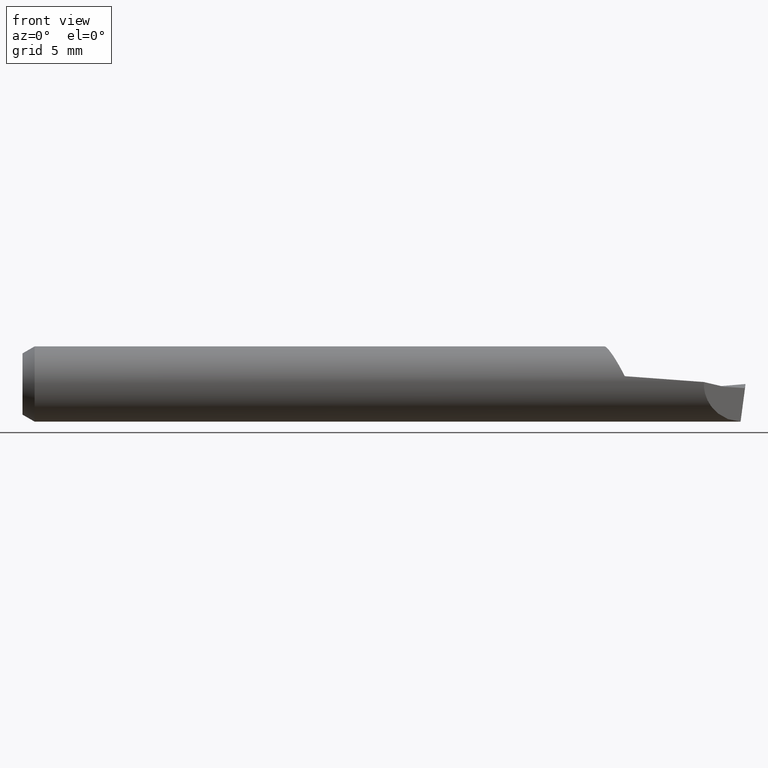
[diagram: clean part render]
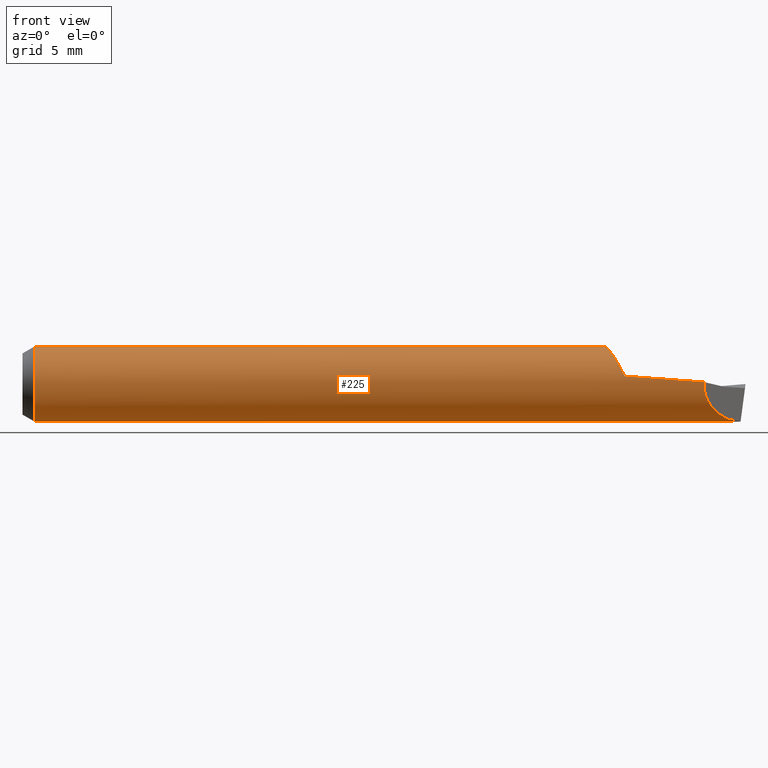
[diagram: same view with one face highlighted and labeled with its STEP entity id]
A machine part, front view. The second image highlights one B-rep face of the part: STEP entity #225.
In plain terms, the highlighted cylindrical surface (partial cylindrical patch) has radius 1.9812 mm, axis along (-1, -0, -0).
Its self-contained STEP definition (entity closure, byte-faithful):
#1 = CARTESIAN_POINT ( 'NONE',  ( 1.489609005750359483, -0.001329931869569869361, -0.07799149631257126791 ) ) ;
#5 = CARTESIAN_POINT ( 'NONE',  ( 0.000000000000000000, 9.552245033349355435E-18, -0.07799999999999999989 ) ) ;
#6 = CARTESIAN_POINT ( 'NONE',  ( 1.413707719425090215, -0.07789228057490950319, 0.004097880774202420848 ) ) ;
#12 = VECTOR ( 'NONE', #69, 39.37007874015748143 ) ;
#30 = EDGE_CURVE ( 'NONE', #140, #660, #666, .T. ) ;
#36 = EDGE_LOOP ( 'NONE', ( #361, #418, #452, #379, #103, #144, #346, #612 ) ) ;
#49 = CARTESIAN_POINT ( 'NONE',  ( 1.243898404004956326, -0.07389056700951129875, 0.02749594350433244572 ) ) ;
#54 = EDGE_CURVE ( 'NONE', #179, #660, #390, .T. ) ;
#69 = DIRECTION ( 'NONE',  ( -1.000000000000000000, -0.000000000000000000, -0.000000000000000000 ) ) ;
#82 = FACE_OUTER_BOUND ( 'NONE', #36, .T. ) ;
#87 = CARTESIAN_POINT ( 'NONE',  ( 1.227055970727156886, -0.05435023697217546135, 0.05625500250299384636 ) ) ;
#91 = CARTESIAN_POINT ( 'NONE',  ( 1.219553846262205754, -0.04012620017288952984, 0.06693226266428028981 ) ) ;
#98 = EDGE_CURVE ( 'NONE', #358, #179, #622, .T. ) ;
#103 = ORIENTED_EDGE ( 'NONE', *, *, #30, .F. ) ;
#119 = CARTESIAN_POINT ( 'NONE',  ( 0.02499999999999999792, 0.000000000000000000, 0.07799999999999999989 ) ) ;
#125 = CARTESIAN_POINT ( 'NONE',  ( 1.489605292493080491, -0.001994707506919228893, -0.07797449032832366733 ) ) ;
#127 = VECTOR ( 'NONE', #377, 39.37007874015748143 ) ;
#139 = DIRECTION ( 'NONE',  ( -1.000000000000000000, -0.000000000000000000, -0.000000000000000000 ) ) ;
#140 = VERTEX_POINT ( 'NONE', #541 ) ;
#144 = ORIENTED_EDGE ( 'NONE', *, *, #399, .T. ) ;
#153 = CARTESIAN_POINT ( 'NONE',  ( 1.413707719425090215, -0.07789228057490950319, 0.004097880774202420848 ) ) ;
#154 = VECTOR ( 'NONE', #290, 39.37007874015748143 ) ;
#164 = AXIS2_PLACEMENT_3D ( 'NONE', #568, #411, #613 ) ;
#173 = LINE ( 'NONE', #5, #127 ) ;
#174 = CARTESIAN_POINT ( 'NONE',  ( 1.290000000000000258, 0.000000000000000000, -0.07799999999999999989 ) ) ;
#179 = VERTEX_POINT ( 'NONE', #125 ) ;
#184 = CARTESIAN_POINT ( 'NONE',  ( 1.199999999999999956, 0.000000000000000000, -0.07799999999999999989 ) ) ;
#201 = CARTESIAN_POINT ( 'NONE',  ( 1.249636026273901690, -0.07628215470666116493, 0.01627983026044845308 ) ) ;
#223 = CIRCLE ( 'NONE', #164, 0.07799999999999999989 ) ;
#225 = ADVANCED_FACE ( 'NONE', ( #82 ), #282, .T. ) ;
#226 = EDGE_CURVE ( 'NONE', #242, #358, #587, .T. ) ;
#241 = B_SPLINE_CURVE_WITH_KNOTS ( 'NONE', 3,
 ( #201, #49, #251, #255, #87, #459, #463, #566, #451, #296, #312, #403, #555, #91, #502, #258, #466, #579, #637 ),
 .UNSPECIFIED., .F., .F.,
 ( 4, 2, 2, 1, 2, 2, 1, 1, 2, 2, 4 ),
 ( 0.000000000000000000, 0.2424613042770835947, 0.4849226085541671893, 0.4924995243128265088, 0.4962879821921559187, 0.5000764400714853286, 0.5152302715887997486, 0.5455379346234286997, 0.6061532606926853806, 0.7273839128311987423, 0.9698452171082266871 ),
 .UNSPECIFIED. ) ;
#242 = VERTEX_POINT ( 'NONE', #174 ) ;
#251 = CARTESIAN_POINT ( 'NONE',  ( 1.238862976349409450, -0.06935741945142365195, 0.03672750959377762969 ) ) ;
#255 = CARTESIAN_POINT ( 'NONE',  ( 1.230441759710509952, -0.05958496316865238840, 0.05107831005536581787 ) ) ;
#257 = CARTESIAN_POINT ( 'NONE',  ( 0.02499999999999999792, 9.552245033349355435E-18, -0.07799999999999999989 ) ) ;
#258 = CARTESIAN_POINT ( 'NONE',  ( 1.215083676285801273, -0.02931723955610072638, 0.07242544898273661769 ) ) ;
#270 = CARTESIAN_POINT ( 'NONE',  ( 1.489619567728670324, 0.000000000000000000, -0.07799999999999999989 ) ) ;
#282 = CYLINDRICAL_SURFACE ( 'NONE', #367, 0.07799999999999999989 ) ;
#290 = DIRECTION ( 'NONE',  ( 1.000000000000000000, -0.000000000000000000, -0.000000000000000000 ) ) ;
#296 = CARTESIAN_POINT ( 'NONE',  ( 1.224092724940147869, -0.04910924457521492759, 0.06059957606048550077 ) ) ;
#312 = CARTESIAN_POINT ( 'NONE',  ( 1.223741914051305057, -0.04847555582096993443, 0.06111092235590564331 ) ) ;
#346 = ORIENTED_EDGE ( 'NONE', *, *, #453, .T. ) ;
#351 = CARTESIAN_POINT ( 'NONE',  ( 1.489619567728670324, 0.000000000000000000, -0.07799999999999999989 ) ) ;
#358 = VERTEX_POINT ( 'NONE', #351 ) ;
#361 = ORIENTED_EDGE ( 'NONE', *, *, #475, .F. ) ;
#367 = AXIS2_PLACEMENT_3D ( 'NONE', #485, #139, #592 ) ;
#369 = CARTESIAN_POINT ( 'NONE',  ( 1.489605292493080491, -0.001994707506919228893, -0.07797449032832366733 ) ) ;
#377 = DIRECTION ( 'NONE',  ( -1.000000000000000000, -0.000000000000000000, -0.000000000000000000 ) ) ;
#379 = ORIENTED_EDGE ( 'NONE', *, *, #54, .T. ) ;
#390 =( BOUNDED_CURVE ( )  B_SPLINE_CURVE ( 3, ( #369, #519, #571, #6 ),
 .UNSPECIFIED., .F., .T. ) 
 B_SPLINE_CURVE_WITH_KNOTS ( ( 4, 4 ),
 ( 4.737964941792221829, 6.335746438371414158 ),
 .UNSPECIFIED. ) 
 CURVE ( )  GEOMETRIC_REPRESENTATION_ITEM ( )  RATIONAL_B_SPLINE_CURVE ( ( 1.000000000000000000, 0.7983346726847653230, 0.7983346726847653230, 1.000000000000000000 ) ) 
 REPRESENTATION_ITEM ( '' )  );
#399 = EDGE_CURVE ( 'NONE', #140, #438, #241, .T. ) ;
#403 = CARTESIAN_POINT ( 'NONE',  ( 1.222909934234173379, -0.04694550101351054744, 0.06231412156065058161 ) ) ;
#411 = DIRECTION ( 'NONE',  ( -1.000000000000000000, -0.000000000000000000, -0.000000000000000000 ) ) ;
#418 = ORIENTED_EDGE ( 'NONE', *, *, #226, .T. ) ;
#421 = CARTESIAN_POINT ( 'NONE',  ( 1.413707719425090215, -0.07789228057490950319, 0.004097880774202420848 ) ) ;
#432 = CARTESIAN_POINT ( 'NONE',  ( 1.489605292493080491, -0.001994707506919228893, -0.07797449032832366733 ) ) ;
#438 = VERTEX_POINT ( 'NONE', #630 ) ;
#451 = CARTESIAN_POINT ( 'NONE',  ( 1.224101494845487803, -0.04912488293526755256, 0.06058674726895770662 ) ) ;
#452 = ORIENTED_EDGE ( 'NONE', *, *, #98, .T. ) ;
#453 = EDGE_CURVE ( 'NONE', #438, #460, #474, .T. ) ;
#459 = CARTESIAN_POINT ( 'NONE',  ( 1.224414970778422651, -0.04968500731398107356, 0.06012847754148815949 ) ) ;
#460 = VERTEX_POINT ( 'NONE', #119 ) ;
#463 = CARTESIAN_POINT ( 'NONE',  ( 1.224296133557657429, -0.04947390781766131812, 0.06030248468299862635 ) ) ;
#466 = CARTESIAN_POINT ( 'NONE',  ( 1.210740023081815497, -0.01631038412625025052, 0.07682288820278296293 ) ) ;
#474 = LINE ( 'NONE', #626, #12 ) ;
#475 = EDGE_CURVE ( 'NONE', #242, #665, #173, .T. ) ;
#476 = CARTESIAN_POINT ( 'NONE',  ( 1.331750138333477329, -0.07756849034015433908, 0.01025246681568264991 ) ) ;
#478 = CARTESIAN_POINT ( 'NONE',  ( 1.489613764421618081, -0.0006649931214030996036, -0.07800000000000001377 ) ) ;
#485 = CARTESIAN_POINT ( 'NONE',  ( 0.000000000000000000, 0.000000000000000000, 0.000000000000000000 ) ) ;
#502 = CARTESIAN_POINT ( 'NONE',  ( 1.216744175430401365, -0.03368648478273147256, 0.07052219257569093680 ) ) ;
#519 = CARTESIAN_POINT ( 'NONE',  ( 1.442945512165095812, -0.04865448783490416290, -0.07678086131325036201 ) ) ;
#520 = CARTESIAN_POINT ( 'NONE',  ( 1.249636026273901690, -0.07628215470666116493, 0.01627983026044845308 ) ) ;
#541 = CARTESIAN_POINT ( 'NONE',  ( 1.249636026273901690, -0.07628215470666116493, 0.01627983026044845308 ) ) ;
#555 = CARTESIAN_POINT ( 'NONE',  ( 1.221038412206834733, -0.04331686153096676872, 0.06495399746602677216 ) ) ;
#566 = CARTESIAN_POINT ( 'NONE',  ( 1.224179108684065875, -0.04926429189293565769, 0.06047344551391069939 ) ) ;
#568 = CARTESIAN_POINT ( 'NONE',  ( 0.02499999999999999792, 0.000000000000000000, 0.000000000000000000 ) ) ;
#571 = CARTESIAN_POINT ( 'NONE',  ( 1.411255555699114650, -0.08034444430088515110, -0.04251270540042573209 ) ) ;
#579 = CARTESIAN_POINT ( 'NONE',  ( 1.208694713252240760, -0.007799855248630344247, 0.07799996703830759659 ) ) ;
#587 = LINE ( 'NONE', #184, #154 ) ;
#592 = DIRECTION ( 'NONE',  ( 0.000000000000000000, 0.000000000000000000, 1.000000000000000000 ) ) ;
#612 = ORIENTED_EDGE ( 'NONE', *, *, #654, .F. ) ;
#613 = DIRECTION ( 'NONE',  ( 0.000000000000000000, 0.000000000000000000, 1.000000000000000000 ) ) ;
#622 =( BOUNDED_CURVE ( )  B_SPLINE_CURVE ( 3, ( #270, #478, #1, #432 ),
 .UNSPECIFIED., .F., .T. ) 
 B_SPLINE_CURVE_WITH_KNOTS ( ( 4, 4 ),
 ( 6.212232684215151401, 6.237808645622682668 ),
 .UNSPECIFIED. ) 
 CURVE ( )  GEOMETRIC_REPRESENTATION_ITEM ( )  RATIONAL_B_SPLINE_CURVE ( ( 1.000000000000000000, 0.9999454899260264984, 0.9999454899260264984, 1.000000000000000000 ) ) 
 REPRESENTATION_ITEM ( '' )  );
#626 = CARTESIAN_POINT ( 'NONE',  ( 0.000000000000000000, 0.000000000000000000, 0.07799999999999999989 ) ) ;
#630 = CARTESIAN_POINT ( 'NONE',  ( 1.207498938882741735, -4.673349976021370457E-07, 0.07800176490495329407 ) ) ;
#637 = CARTESIAN_POINT ( 'NONE',  ( 1.207498938882741735, -4.673349976021370457E-07, 0.07800176490495329407 ) ) ;
#654 = EDGE_CURVE ( 'NONE', #665, #460, #223, .T. ) ;
#660 = VERTEX_POINT ( 'NONE', #153 ) ;
#665 = VERTEX_POINT ( 'NONE', #257 ) ;
#666 =( BOUNDED_CURVE ( )  B_SPLINE_CURVE ( 2, ( #520, #476, #421 ),
 .UNSPECIFIED., .F., .T. ) 
 B_SPLINE_CURVE_WITH_KNOTS ( ( 3, 3 ),
 ( 0.6545571295937860912, 0.8799977850797249257 ),
 .UNSPECIFIED. ) 
 CURVE ( )  GEOMETRIC_REPRESENTATION_ITEM ( )  RATIONAL_B_SPLINE_CURVE ( ( 0.9790441223816381822, 0.9764671052169310306, 0.9799771266789694124 ) ) 
 REPRESENTATION_ITEM ( '' )  );